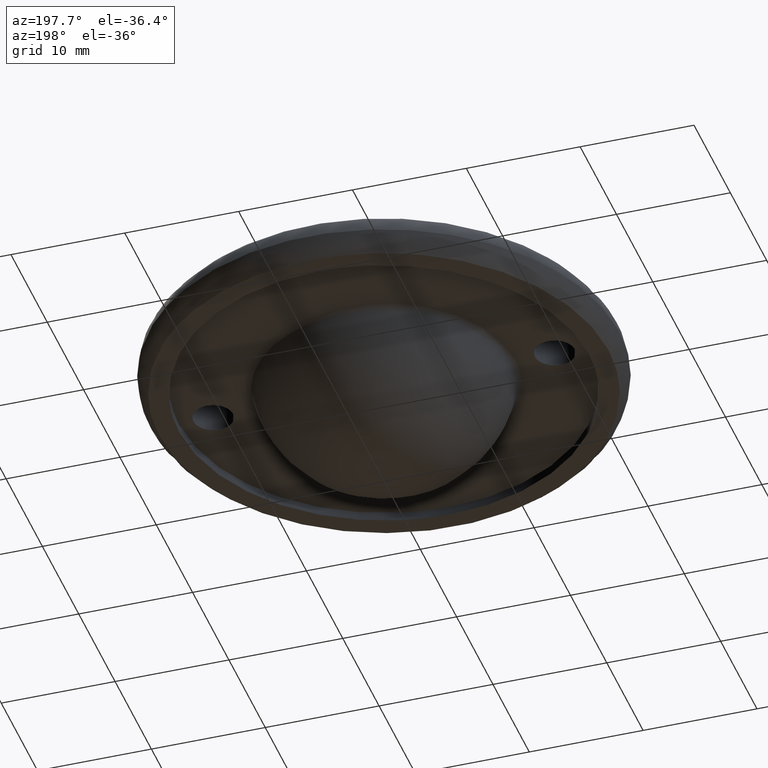
[diagram: clean part render]
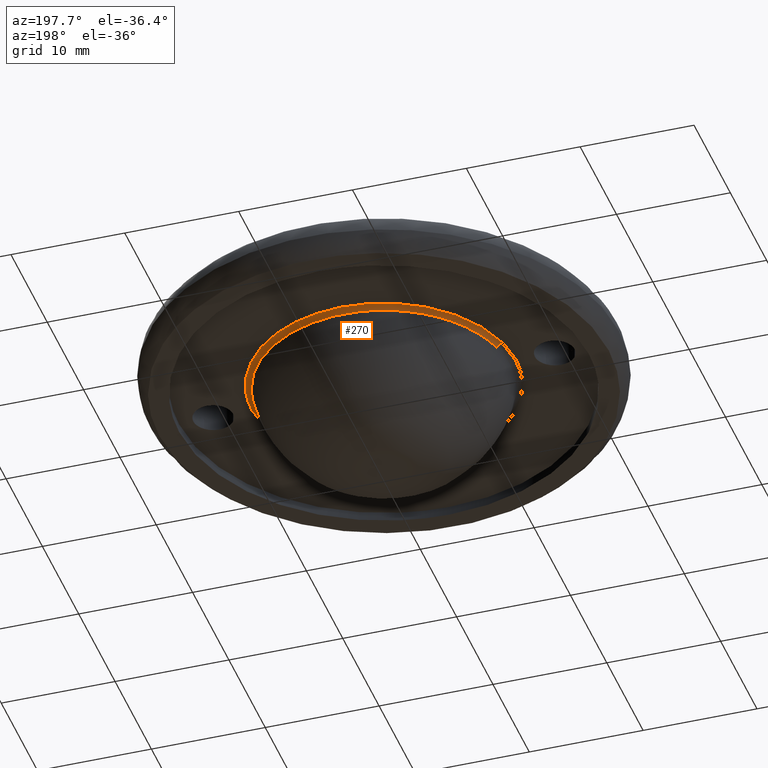
[diagram: same view with one face highlighted and labeled with its STEP entity id]
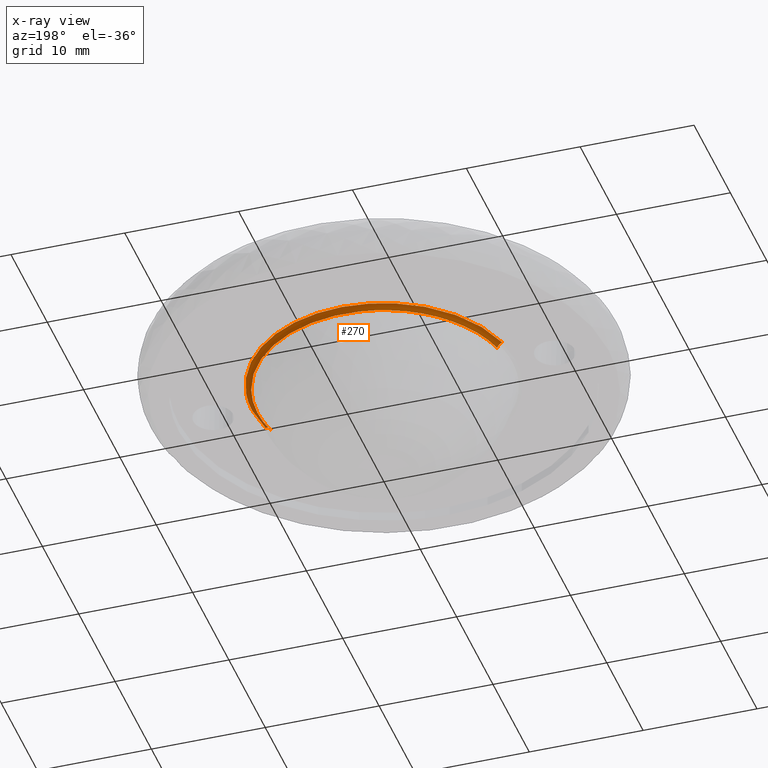
[diagram: x-ray of the same camera — body ghosted, the highlighted face saturated]
A machine part, auxiliary view. The second image highlights one B-rep face of the part: STEP entity #270.
The next image is the same camera in x-ray: the body ghosted, the highlighted face saturated — about 0% of this face is hidden behind the body in this view.
In plain terms, the highlighted face is a freeform B-spline surface patch.
Its self-contained STEP definition (entity closure, byte-faithful):
#31=CARTESIAN_POINT('',(-10.795808709323371,2.627742430968604,0.418901426358730));
#32=VERTEX_POINT('',#31);
#40=CARTESIAN_POINT('',(11.111008682785920,0.0,0.418901054543620));
#41=VERTEX_POINT('',#40);
#42=CARTESIAN_POINT('',(-10.795808709323371,2.627742430968604,0.418901426358730));
#43=CARTESIAN_POINT('',(-10.632004407543450,3.301041703677720,0.418901424969294));
#44=CARTESIAN_POINT('',(-10.198439614929480,4.556997961496044,0.418901420235664));
#45=CARTESIAN_POINT('',(-9.363781159218885,6.046042253990842,0.418901409258806));
#46=CARTESIAN_POINT('',(-8.501916358289046,7.186830405100512,0.418901397127786));
#47=CARTESIAN_POINT('',(-7.493378854738742,8.259389316225596,0.418901382405732));
#48=CARTESIAN_POINT('',(-6.219503107531087,9.265907034074539,0.418901363111526));
#49=CARTESIAN_POINT('',(-4.526509581445540,10.206493252279911,0.418901336672401));
#50=CARTESIAN_POINT('',(-3.032939788227789,10.729869619460400,0.418901312732659));
#51=CARTESIAN_POINT('',(-1.527806156516755,11.027480929013480,0.418901288146311));
#52=CARTESIAN_POINT('',(-0.081419047186149,11.154527457193300,0.418901264200581));
#53=CARTESIAN_POINT('',(1.727526684426739,11.035859753288729,0.418901233695433));
#54=CARTESIAN_POINT('',(3.650737032564044,10.556817728525850,0.418901200555167));
#55=CARTESIAN_POINT('',(5.477047260891141,9.735335765841940,0.418901168348933));
#56=CARTESIAN_POINT('',(6.920114994678916,8.745276689960246,0.418901142216715));
#57=CARTESIAN_POINT('',(8.137299871194497,7.614259456548853,0.418901119581030));
#58=CARTESIAN_POINT('',(9.060990866343213,6.492483046452280,0.418901101874583));
#59=CARTESIAN_POINT('',(9.940697677338372,5.057525181443659,0.418901084275510));
#60=CARTESIAN_POINT('',(10.621574079646880,3.445848575227395,0.418901069648586));
#61=CARTESIAN_POINT('',(11.029045049547699,1.679857507895767,0.418901059286474));
#62=CARTESIAN_POINT('',(11.111024369620990,0.524955746898221,0.418901055596934));
#63=CARTESIAN_POINT('',(11.111008682785920,0.0,0.418901054543620));
#64=B_SPLINE_CURVE_WITH_KNOTS('',3,(#42,#43,#44,#45,#46,#47,#48,#49,#50,#51,#52,#53,#54,#55,#56,#57,#58,#59,#60,#61,#62,#63),.UNSPECIFIED.,.F.,.U.,(4,1,1,1,1,1,1,1,1,1,1,1,1,1,1,1,1,1,1,4),(0.000000081397502,2.078802204084028,3.968679527519033,5.102589448640725,6.362491169873255,8.378335634047300,9.953215088075268,12.158054304267360,13.102961562322120,14.551845030299230,16.504675917008619,18.520519800053080,20.473349458128251,22.489206142806768,23.749108187286499,25.449980241264210,26.835866677686781,28.788730875546982,30.678558310027391,32.253430500167539),.UNSPECIFIED.);
#65=EDGE_CURVE('',#32,#41,#64,.T.);
#67=CARTESIAN_POINT('',(10.795808709323371,-2.627742430968603,0.418901426358730));
#68=VERTEX_POINT('',#67);
#69=CARTESIAN_POINT('',(11.111008682785920,0.0,0.418901054543620));
#70=CARTESIAN_POINT('',(11.111098823628170,-0.884300373517483,0.418901177892311));
#71=CARTESIAN_POINT('',(11.005093366736540,-1.768557064769295,0.418901303010083));
#72=CARTESIAN_POINT('',(10.795808709323371,-2.627742430968603,0.418901426358730));
#73=B_SPLINE_CURVE_WITH_KNOTS('',3,(#69,#70,#71,#72),.UNSPECIFIED.,.F.,.U.,(4,4),(7.331504E-010,2.652882171507484),.UNSPECIFIED.);
#74=EDGE_CURVE('',#41,#68,#73,.T.);
#136=CARTESIAN_POINT('',(11.267688184956871,-2.742599757114673,0.800000000000000));
#137=VERTEX_POINT('',#136);
#138=CARTESIAN_POINT('',(10.795808709323371,-2.627742430968603,0.418901426358730));
#139=CARTESIAN_POINT('',(10.806999381295871,-2.630466284684354,0.466029346329139));
#140=CARTESIAN_POINT('',(10.845424540606180,-2.639819120074429,0.563374545498548));
#141=CARTESIAN_POINT('',(10.946253482125000,-2.664361282261689,0.687274881215216));
#142=CARTESIAN_POINT('',(11.092645114213679,-2.699993583088980,0.777653520846593));
#143=CARTESIAN_POINT('',(11.207071104599921,-2.727845320601088,0.800059221216628));
#144=CARTESIAN_POINT('',(11.267688184956871,-2.742599757114673,0.800000000000000));
#145=B_SPLINE_CURVE_WITH_KNOTS('',3,(#138,#139,#140,#141,#142,#143,#144),.UNSPECIFIED.,.F.,.U.,(4,1,1,1,4),(0.000000047427591,0.145554508514646,0.311905188271629,0.478252215359885,0.665394471543792),.UNSPECIFIED.);
#146=EDGE_CURVE('',#68,#137,#145,.T.);
#177=CARTESIAN_POINT('',(-11.267688184956871,2.742599757114676,0.800000000000000));
#178=VERTEX_POINT('',#177);
#186=CARTESIAN_POINT('',(-10.795808709323371,2.627742430968604,0.418901426358730));
#187=CARTESIAN_POINT('',(-10.806999353155231,2.630466277834811,0.466029365608475));
#188=CARTESIAN_POINT('',(-10.845424607912999,2.639819136457178,0.563374509201528));
#189=CARTESIAN_POINT('',(-10.946253412502070,2.664361265315189,0.687274917091980));
#190=CARTESIAN_POINT('',(-11.092645281121920,2.699993623715113,0.777653533307074));
#191=CARTESIAN_POINT('',(-11.207070869301131,2.727845263328431,0.800059093619556));
#192=CARTESIAN_POINT('',(-11.267688184956871,2.742599757114676,0.800000000000000));
#193=B_SPLINE_CURVE_WITH_KNOTS('',3,(#186,#187,#188,#189,#190,#191,#192),.UNSPECIFIED.,.F.,.U.,(4,1,1,1,4),(0.000000047427316,0.145554508514448,0.311905188271503,0.478252215359843,0.665394471543793),.UNSPECIFIED.);
#194=EDGE_CURVE('',#32,#178,#193,.T.);
#200=CARTESIAN_POINT('',(-10.863075078391013,2.324600792522950,0.389132398550774));
#201=CARTESIAN_POINT('',(-10.826578260091347,2.474544205631024,0.389132398550774));
#202=CARTESIAN_POINT('',(-8.163409539873122,13.415898170063288,0.389132398550774));
#203=CARTESIAN_POINT('',(2.626244315095082,10.789653854968206,0.389132398550774));
#204=CARTESIAN_POINT('',(13.415898170063288,8.163409539873122,0.389132398550774));
#205=CARTESIAN_POINT('',(10.752729449820384,-2.777944424660557,0.389132398550774));
#206=CARTESIAN_POINT('',(10.716232631496604,-2.927887837867704,0.389132398550774));
#207=CARTESIAN_POINT('',(-10.940534433959606,2.341176400998791,0.826200114753057));
#208=CARTESIAN_POINT('',(-10.903777374429406,2.492188988357000,0.826200114753057));
#209=CARTESIAN_POINT('',(-8.221618880933368,13.511560477386764,0.826200114753057));
#210=CARTESIAN_POINT('',(2.644970798226698,10.866589679160066,0.826200114753057));
#211=CARTESIAN_POINT('',(13.511560477386764,8.221618880933368,0.826200114753057));
#212=CARTESIAN_POINT('',(10.829401983865864,-2.797752608198531,0.826200114753057));
#213=CARTESIAN_POINT('',(10.792644924311380,-2.948765195656522,0.826200114753057));
#214=CARTESIAN_POINT('',(-11.374241457655497,2.433985820406353,0.799066213584739));
#215=CARTESIAN_POINT('',(-11.336027266850328,2.590984881295550,0.799066213584739));
#216=CARTESIAN_POINT('',(-8.547542068354938,14.047188669547534,0.799066213584739));
#217=CARTESIAN_POINT('',(2.749823300596298,11.297365368951231,0.799066213584739));
#218=CARTESIAN_POINT('',(14.047188669547534,8.547542068354938,0.799066213584739));
#219=CARTESIAN_POINT('',(11.258703471026299,-2.908661720003233,0.799066213584739));
#220=CARTESIAN_POINT('',(11.220489280195876,-3.065660780996165,0.799066213584739));
#228=(BOUNDED_SURFACE()B_SPLINE_SURFACE(2,2,((#200,#207,#214),(#201,#208,#215),(#202,#209,#216),(#203,#210,#217),(#204,#211,#218),(#205,#212,#219),(#206,#213,#220)),.UNSPECIFIED.,.F.,.F.,.U.)B_SPLINE_SURFACE_WITH_KNOTS((3,1,2,1,3),(3,3),(0.0,0.385291817531155,19.649882696489900,38.914473575448639,39.299765393238879),(0.0,0.760246136398482),.UNSPECIFIED.)GEOMETRIC_REPRESENTATION_ITEM()RATIONAL_B_SPLINE_SURFACE(((0.929325588207703,0.693319439171713,0.925456047063265),(0.923944765213917,0.689305098850439,0.920097628828618),(0.649522792497303,0.484573742440445,0.646818298828227),(0.918563942220131,0.685290758529165,0.914739210593971),(0.649522792497303,0.484573742440445,0.646818298828227),(0.923944765217535,0.689305098853138,0.920097628832222),(0.929325588214940,0.693319439177112,0.925456047070472)))REPRESENTATION_ITEM('')SURFACE());
#229=ORIENTED_EDGE('',*,*,#74,.F.);
#230=ORIENTED_EDGE('',*,*,#65,.F.);
#231=ORIENTED_EDGE('',*,*,#194,.T.);
#232=CARTESIAN_POINT('',(11.596665494977840,0.0,0.800000000000000));
#233=VERTEX_POINT('',#232);
#234=CARTESIAN_POINT('',(-11.267688184956871,2.742599757114676,0.800000000000000));
#235=CARTESIAN_POINT('',(-11.117425790407029,3.360141394025577,0.799999999999999));
#236=CARTESIAN_POINT('',(-10.749663549196571,4.466069297660289,0.800000000000001));
#237=CARTESIAN_POINT('',(-10.051600861857940,5.836167740597501,0.800000000000005));
#238=CARTESIAN_POINT('',(-9.321936092482066,6.931967277885200,0.799999999999992));
#239=CARTESIAN_POINT('',(-8.428385448142295,8.015796709920750,0.800000000000002));
#240=CARTESIAN_POINT('',(-7.106963055721247,9.242144811809867,0.799999999999998));
#241=CARTESIAN_POINT('',(-5.381980157941297,10.346580141489010,0.800000000000015));
#242=CARTESIAN_POINT('',(-3.588164947602236,11.073815991673230,0.799999999999974));
#243=CARTESIAN_POINT('',(-2.092999864688739,11.431690896309799,0.800000000000007));
#244=CARTESIAN_POINT('',(-0.503084666142127,11.626019263661110,0.799999999999989));
#245=CARTESIAN_POINT('',(1.235513949701093,11.590972879879910,0.800000000000040));
#246=CARTESIAN_POINT('',(3.004196047945836,11.239870516653831,0.799999999999982));
#247=CARTESIAN_POINT('',(4.662790490986287,10.662831991946090,0.800000000000012));
#248=CARTESIAN_POINT('',(6.087795399487681,9.922050232079256,0.799999999999997));
#249=CARTESIAN_POINT('',(7.489872384302782,8.900503177571268,0.800000000000001));
#250=CARTESIAN_POINT('',(8.598819588791349,7.834382563625780,0.800000000000001));
#251=CARTESIAN_POINT('',(9.661128464545163,6.490812096270822,0.800000000000001));
#252=CARTESIAN_POINT('',(10.439269837559040,5.136813413413643,0.800000000000000));
#253=CARTESIAN_POINT('',(11.053931479036381,3.609771964269013,0.799999999999998));
#254=CARTESIAN_POINT('',(11.481005138053559,1.972431468687135,0.800000000000020));
#255=CARTESIAN_POINT('',(11.596733105224031,0.701317971787931,0.799999999999931));
#256=CARTESIAN_POINT('',(11.596665494977840,0.0,0.800000000000000));
#257=B_SPLINE_CURVE_WITH_KNOTS('',3,(#234,#235,#236,#237,#238,#239,#240,#241,#242,#243,#244,#245,#246,#247,#248,#249,#250,#251,#252,#253,#254,#255,#256),.UNSPECIFIED.,.F.,.U.,(4,1,1,1,1,1,1,1,1,1,1,1,1,1,1,1,1,1,1,1,4),(0.000000080051663,1.906672830287072,3.484643062393268,4.602383427606995,5.851611709778535,7.692567736422731,9.993768260078461,11.966232531355439,13.478460664467439,14.596183505841120,16.765887572352138,18.672558644460459,19.987528689709549,22.025717767077829,23.472196533849939,25.181661202057001,26.628128702097090,28.600593351573028,29.849808886476492,31.559263782510548,33.663212273692977),.UNSPECIFIED.);
#258=EDGE_CURVE('',#178,#233,#257,.T.);
#259=ORIENTED_EDGE('',*,*,#258,.T.);
#260=CARTESIAN_POINT('',(11.596665494977840,0.0,0.800000000000000));
#261=CARTESIAN_POINT('',(11.596754837340610,-0.922952478419905,0.800000000000000));
#262=CARTESIAN_POINT('',(11.486127385504259,-1.845860076243724,0.800000000000001));
#263=CARTESIAN_POINT('',(11.267688184956871,-2.742599757114673,0.800000000000000));
#264=B_SPLINE_CURVE_WITH_KNOTS('',3,(#260,#261,#262,#263),.UNSPECIFIED.,.F.,.U.,(4,4),(7.650174E-010,2.768838355447538),.UNSPECIFIED.);
#265=EDGE_CURVE('',#233,#137,#264,.T.);
#266=ORIENTED_EDGE('',*,*,#265,.T.);
#267=ORIENTED_EDGE('',*,*,#146,.F.);
#268=EDGE_LOOP('',(#229,#230,#231,#259,#266,#267));
#269=FACE_OUTER_BOUND('',#268,.T.);
#270=ADVANCED_FACE('',(#269),#228,.F.);